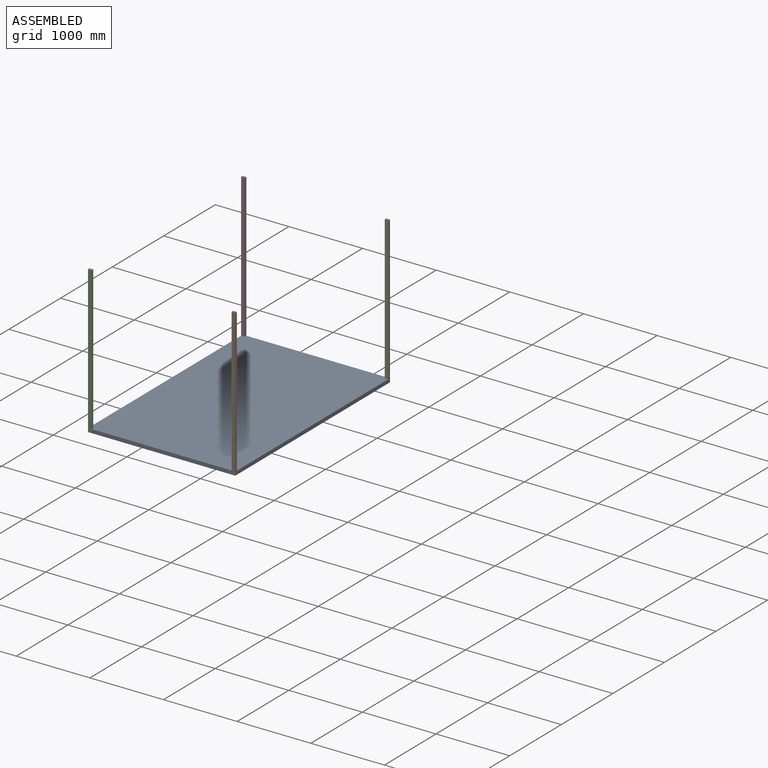
[diagram: assembled view]
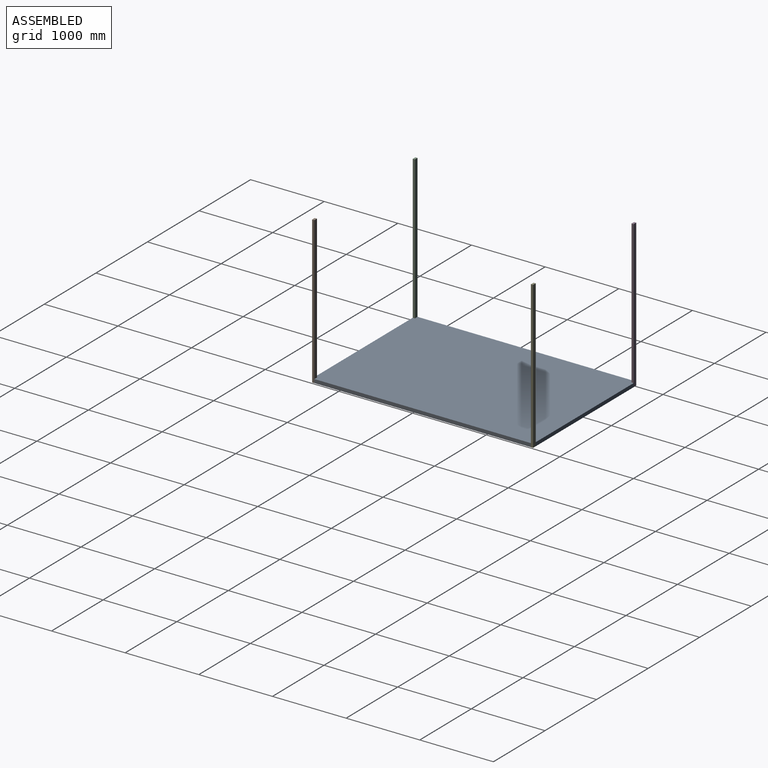
[diagram: assembled view, second angle]
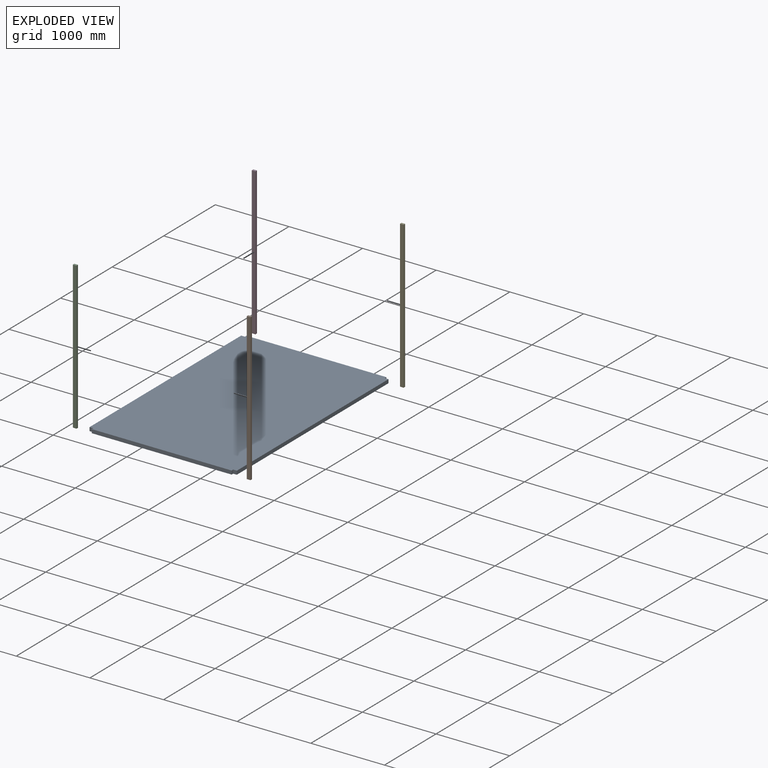
[diagram: exploded view]
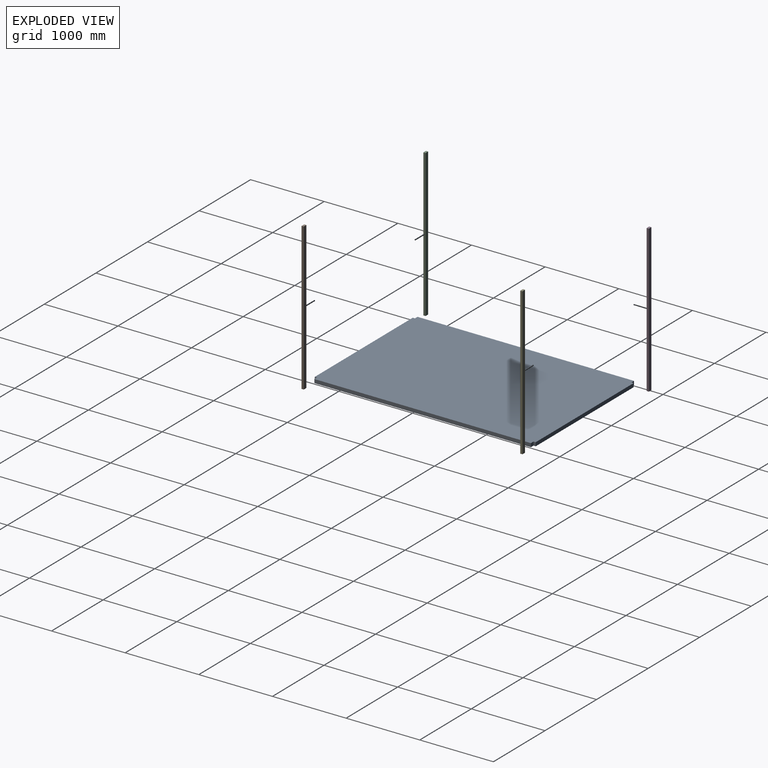
[diagram: exploded view, second angle]
ASSEMBLY  parts=5 mates=12
PART A: 14 faces, bbox 2000x3000x50 mm
  f0: plane 2940x50mm, normal (-1,0,0), area 147000mm2, adj f4,f5,f6,f8
  f1: plane 1900x50mm, normal (0,-1,0), area 95000mm2, adj f4,f5,f7,f13
  f2: plane 2940x50mm, normal (1,0,0), area 147000mm2, adj f4,f5,f10,f12
  f3: plane 1900x50mm, normal (0,1,0), area 95000mm2, adj f4,f5,f9,f11
  f4: plane 3000x2000mm, normal (0,0,-1), area 5994000mm2, adj f0,f1,f2,f3,f6,f7,f8,f9
  f5: plane 3000x2000mm, normal (0,0,1), area 5994000mm2, adj f0,f1,f2,f3,f6,f7,f8,f9
  f6: plane 50x50mm, normal (0,-1,0), area 2500mm2, adj f0,f4,f5,f7
  f7: plane 50x30mm, normal (-1,0,0), area 1500mm2, adj f1,f4,f5,f6
  f8: plane 50x50mm, normal (0,1,0), area 2500mm2, adj f0,f4,f5,f9
  f9: plane 50x30mm, normal (-1,0,0), area 1500mm2, adj f3,f4,f5,f8
  f10: plane 50x50mm, normal (0,1,0), area 2500mm2, adj f2,f4,f5,f11
  f11: plane 50x30mm, normal (1,0,0), area 1500mm2, adj f3,f4,f5,f10
  f12: plane 50x50mm, normal (0,-1,0), area 2500mm2, adj f2,f4,f5,f13
  f13: plane 50x30mm, normal (1,0,0), area 1500mm2, adj f1,f4,f5,f12
PART B: 6 faces, bbox 50x2000x30 mm
  f0: plane 2000x30mm, normal (-1,0,0), area 60000mm2, adj f1,f3,f4,f5
  f1: plane 2000x50mm, normal (0,0,-1), area 100000mm2, adj f0,f2,f4,f5
  f2: plane 2000x30mm, normal (1,0,0), area 60000mm2, adj f1,f3,f4,f5
  f3: plane 2000x50mm, normal (0,0,1), area 100000mm2, adj f0,f2,f4,f5
  f4: plane 50x30mm, normal (0,1,0), area 1500mm2, adj f0,f1,f2,f3
  f5: plane 50x30mm, normal (0,-1,0), area 1500mm2, adj f0,f1,f2,f3
PART C: same geometry as B
PART D: same geometry as B
PART E: same geometry as B
PLACE A t=(-3042.33,-691.21,-73.87)mm
PLACE B rot(axis=(1,0,0),90deg) t=(-1092.33,-661.21,-123.87)mm
PLACE C rot(axis=(1,0,0),90deg) t=(-3042.33,-661.21,-123.87)mm
PLACE D rot(axis=(1,0,0),90deg) t=(-3042.33,2308.79,-123.87)mm
PLACE E rot(axis=(-1,0,0),90deg) t=(-1092.33,2278.79,1876.13)mm
MATE planar A.f2 <-> E.f2  axis (1,0,0) through (-1042.33,2278.79,-123.87)mm
MATE planar D.f1 <-> A.f3  axis (0,1,0) through (-3017.33,2308.79,876.13)mm
MATE planar B.f2 <-> A.f2  axis (1,0,0) through (-1042.33,-676.21,876.13)mm
MATE planar C.f2 <-> A.f7  axis (1,0,0) through (-2992.33,-676.21,876.13)mm
MATE planar E.f3 <-> A.f3  axis (0,1,0) through (-1067.33,2308.79,876.13)mm
MATE planar E.f4 <-> A.f4  axis (0,0,-1) through (-1067.33,2293.79,-123.87)mm
MATE planar C.f3 <-> A.f1  axis (0,-1,0) through (-3017.33,-691.21,876.13)mm
MATE planar B.f3 <-> A.f1  axis (0,-1,0) through (-1067.33,-691.21,876.13)mm
MATE planar B.f5 <-> A.f4  axis (0,0,-1) through (-1067.33,-676.21,-123.87)mm
MATE planar D.f5 <-> A.f4  axis (0,0,-1) through (-3017.33,2293.79,-123.87)mm
MATE planar D.f0 <-> A.f0  axis (-1,0,0) through (-3042.33,2293.79,876.13)mm
MATE planar C.f5 <-> A.f4  axis (0,0,-1) through (-3017.33,-676.21,-123.87)mm
